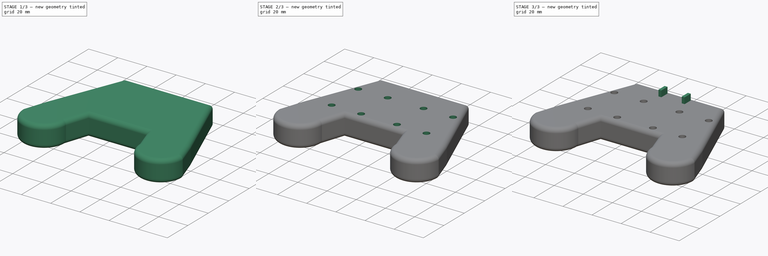
[diagram: build sequence overview — one tinted view per stage of 3, left to right]
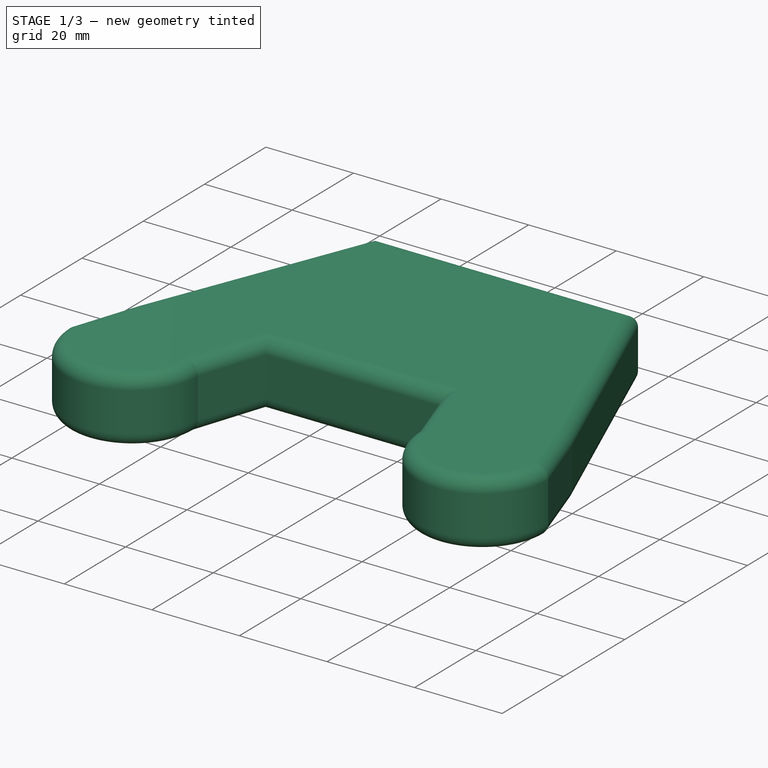
[diagram: stage 1 of 3 — iso view after this stage's code; geometry added in this stage tinted green]
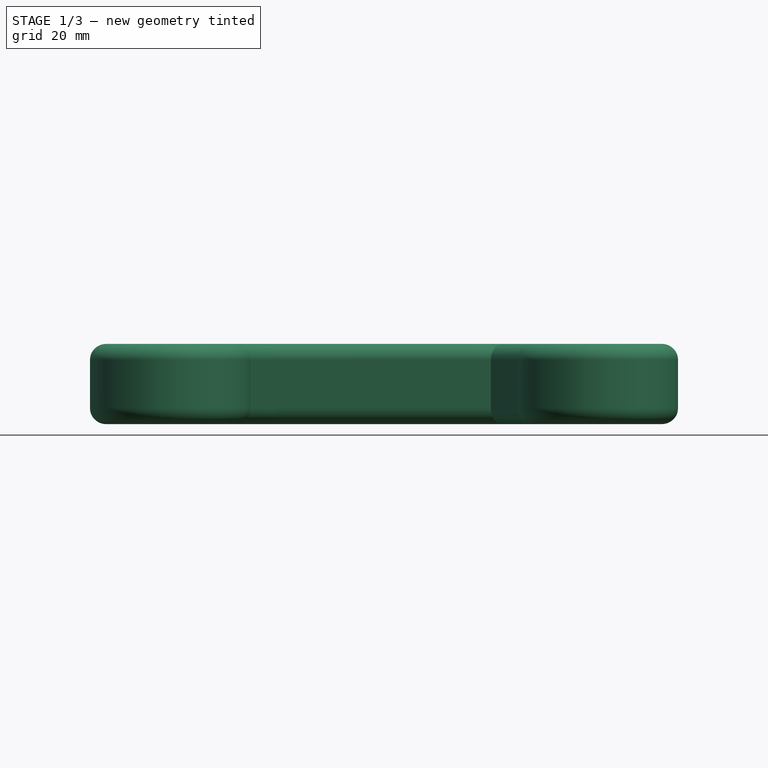
[diagram: stage 1 of 3 — front view after this stage's code; geometry added in this stage tinted green]
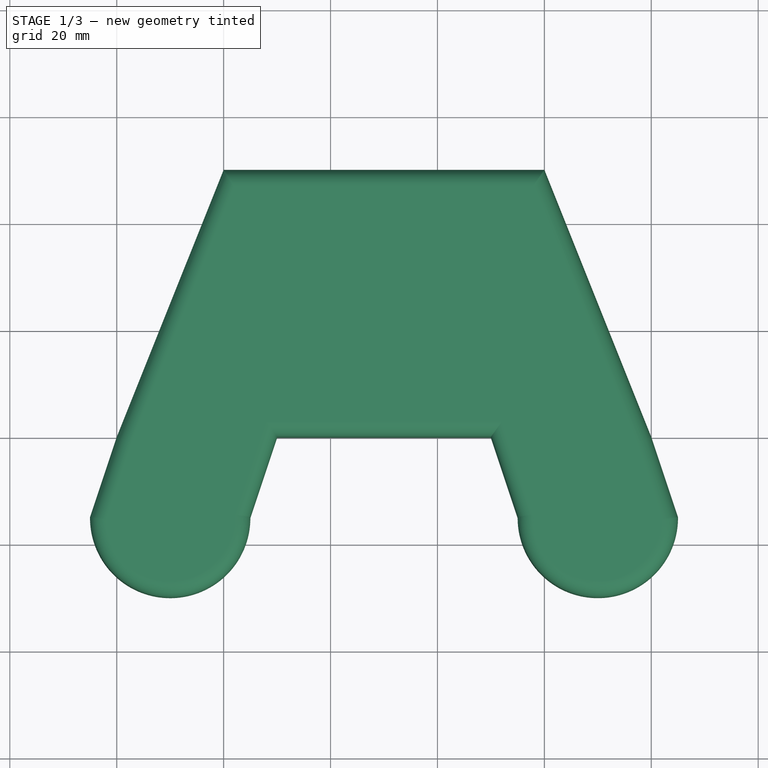
[diagram: stage 1 of 3 — top view after this stage's code; geometry added in this stage tinted green]
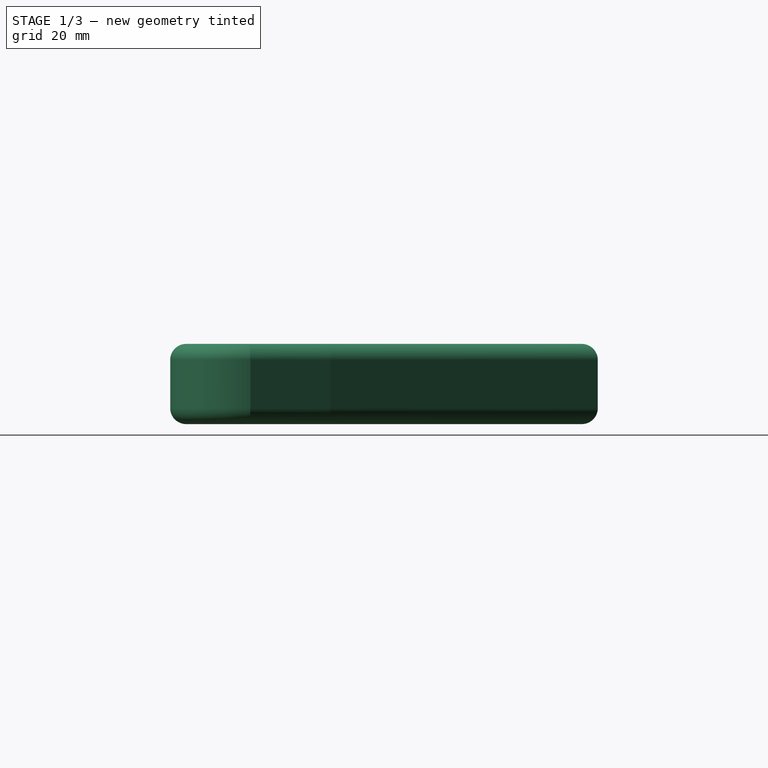
[diagram: stage 1 of 3 — right view after this stage's code; geometry added in this stage tinted green]
FCSTD DOCUMENT  (FreeCAD 0.20R29603 (Git))
Label: remote-controller
License: All rights reserved
LicenseURL: http://en.wikipedia.org/wiki/All_rights_reserved
objects: Sketcher::SketchObject×4, PartDesign::Pad×2, PartDesign::Pocket×2, PartDesign::Fillet×1, PartDesign::Body×1, App::Part×1
note: 15 computed .brp shape members not serialized (recipe doc carries the construction recipe); baked Part::Feature solids carry a one-line shape summary decoded from their .brp

FEATURE [Sketcher::SketchObject] Sketch
  FullyConstrained = true
  MapMode = 5
  Support = -> [XY_Plane001]
  sketch-geometry (10):
    g0: LineSegment StartX=80 StartY=50 StartZ=0 EndX=20 EndY=50 EndZ=0
    g1: LineSegment StartX=0 StartY=0 StartZ=0 EndX=20 EndY=50 EndZ=0
    g2: LineSegment StartX=80 StartY=50 StartZ=0 EndX=100 EndY=0 EndZ=0
    g3: LineSegment StartX=0 StartY=0 StartZ=0 EndX=-5 EndY=-15 EndZ=0
    g4: LineSegment StartX=100 StartY=0 StartZ=0 EndX=105 EndY=-15 EndZ=0
    g5: ArcOfCircle CenterX=10 CenterY=-15 CenterZ=0 NormalX=0 NormalY=0 NormalZ=1 AngleXU=0 Radius=15 StartAngle=3.14159 EndAngle=6.28319
    g6: ArcOfCircle CenterX=90 CenterY=-15 CenterZ=0 NormalX=0 NormalY=0 NormalZ=1 AngleXU=0 Radius=15 StartAngle=3.14159 EndAngle=6.28319
    g7: LineSegment StartX=25 StartY=-15 StartZ=0 EndX=30 EndY=0 EndZ=0
    g8: LineSegment StartX=70 StartY=0 StartZ=0 EndX=75 EndY=-15 EndZ=0
    g9: LineSegment StartX=30 StartY=0 StartZ=0 EndX=70 EndY=0 EndZ=0
  constraints (31):
    c: Horizontal(g0)
    c: PointOnObject(g4,g-1)
    c: Coincident(g0,g1)
    c: Coincident(g0,g2)
    c: Coincident(g5,g3)
    c: Coincident(g6,g4)
    c: Equal(g6,g5)
    c: DistanceY(g5,g1) = 15
    c: DistanceY(g6,g-1) = 15
    c: DistanceX(g3,g5) = 30
    c: DistanceX(g6,g4) = 30
    c: Coincident(g4,g2)
    c: Coincident(g1,g3)
    c: Coincident(g-1,g1)
    c: DistanceX(g0,g0) = 60
    c: DistanceX(g1,g0) = 20
    c: DistanceX(g1,g2) = 100
    c: DistanceX(g3,g1) = 5
    c: DistanceX(g1,g4) = 105
    c: DistanceY(g1,g0) = 50
    c: DistanceY(g4,g1) = 15
    c: DistanceY(g3,g1) = 15
    c: DistanceY(g6,g-1) = 15
    c: Coincident(g7,g5)
    c: PointOnObject(g7,g-1)
    c: PointOnObject(g8,g-1)
    c: Coincident(g8,g6)
    c: Coincident(g9,g7)
    c: Coincident(g9,g8)
    c: DistanceX(g1,g7) = 30
    c: DistanceX(g8,g2) = 30
FEATURE [PartDesign::Pad] Pad
  Direction = (0,0,1)
  Length = 15
  Length2 = 10
  Profile = -> Sketch
  ReferenceAxis = -> Sketch [N_Axis]
  Type = 0
FEATURE [PartDesign::Fillet] Fillet
  Base = -> Pad [Edge19,Edge16,Edge18,Edge15,Edge12,Edge13,Edge21,Edge22,Edge25,Edge24,Edge28,Edge30,Edge4,Edge7,Edge10,Edge27,Edge29,Edge3,Edge6,Edge9]
  BaseFeature = -> Pad
  Radius = 3
  SupportTransform = false
  UseAllEdges = false
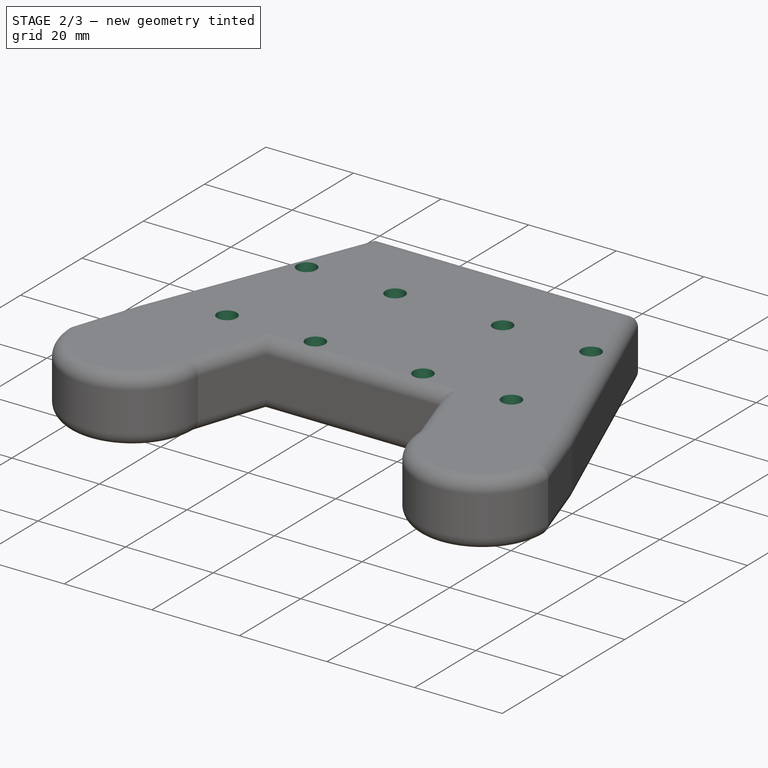
[diagram: stage 2 of 3 — iso view after this stage's code; geometry added in this stage tinted green]
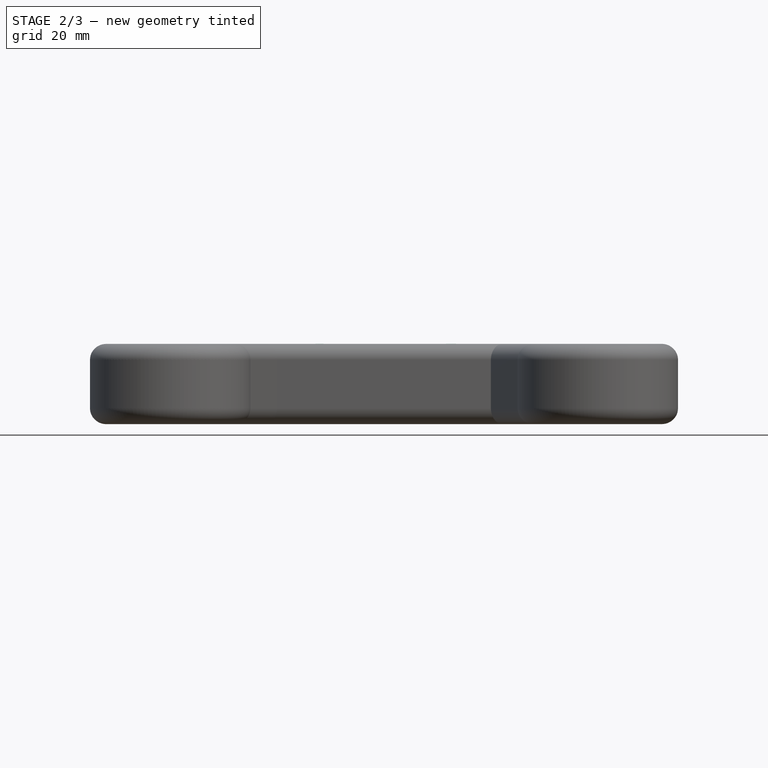
[diagram: stage 2 of 3 — front view after this stage's code; geometry added in this stage tinted green]
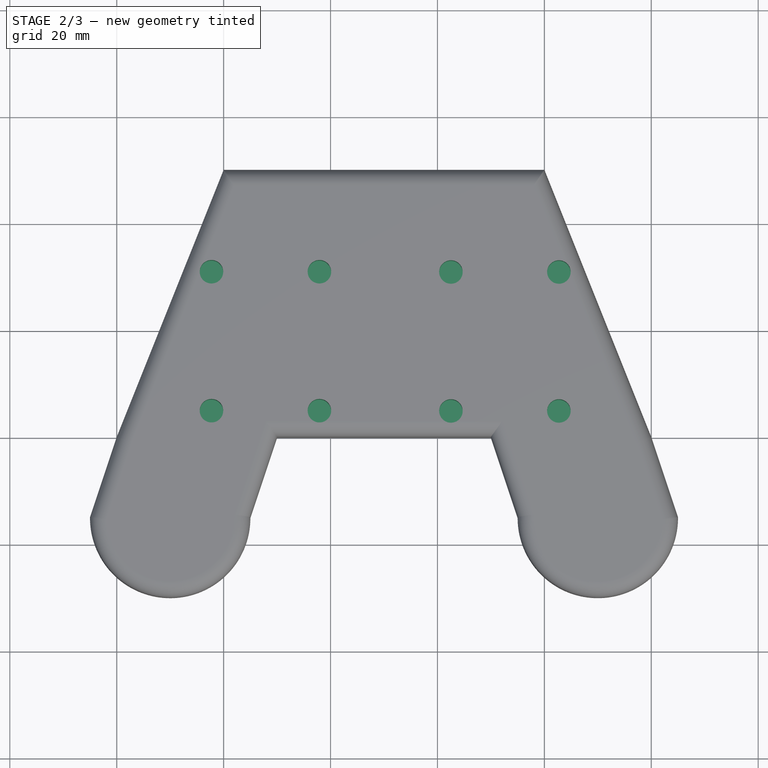
[diagram: stage 2 of 3 — top view after this stage's code; geometry added in this stage tinted green]
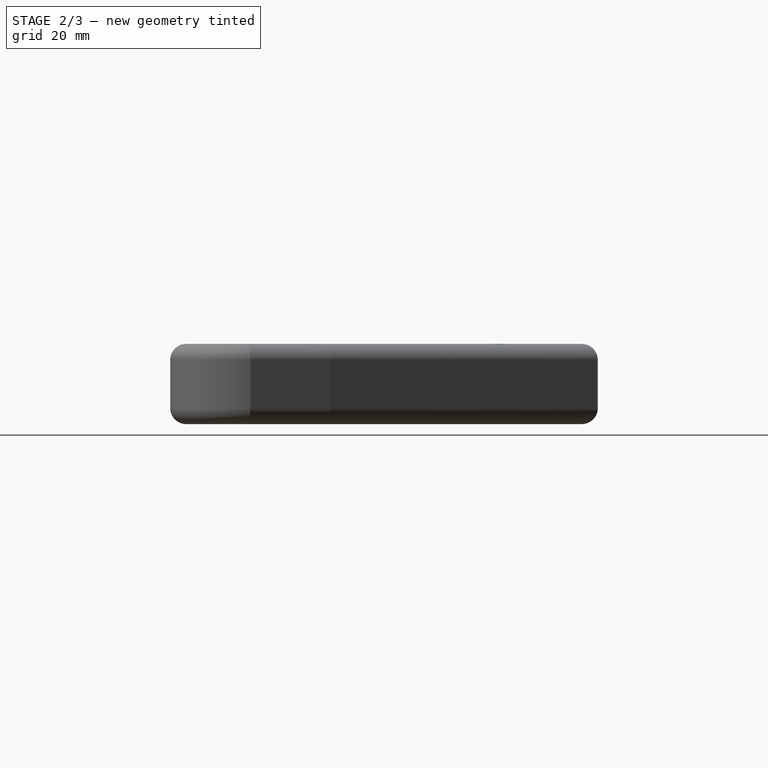
[diagram: stage 2 of 3 — right view after this stage's code; geometry added in this stage tinted green]
FEATURE [Sketcher::SketchObject] Sketch001
  FullyConstrained = true
  MapMode = 5
  Placement = pos=(0,0,15) rot=(0,0,1;0rad)
  Support = -> [Fillet]
  sketch-geometry (8):
    g0: Circle CenterX=17.72 CenterY=30.88 CenterZ=0 NormalX=0 NormalY=0 NormalZ=1 AngleXU=0 Radius=2.2
    g1: Circle CenterX=37.92 CenterY=30.88 CenterZ=0 NormalX=0 NormalY=0 NormalZ=1 AngleXU=0 Radius=2.2
    g2: Circle CenterX=17.72 CenterY=4.88 CenterZ=0 NormalX=0 NormalY=0 NormalZ=1 AngleXU=0 Radius=2.2
    g3: Circle CenterX=37.92 CenterY=4.88 CenterZ=0 NormalX=0 NormalY=0 NormalZ=1 AngleXU=0 Radius=2.2
    g4: Circle CenterX=62.52 CenterY=30.83 CenterZ=0 NormalX=0 NormalY=0 NormalZ=1 AngleXU=0 Radius=2.2
    g5: Circle CenterX=82.72 CenterY=30.83 CenterZ=0 NormalX=0 NormalY=0 NormalZ=1 AngleXU=0 Radius=2.2
    g6: Circle CenterX=62.52 CenterY=4.83 CenterZ=0 NormalX=0 NormalY=0 NormalZ=1 AngleXU=0 Radius=2.2
    g7: Circle CenterX=82.72 CenterY=4.83 CenterZ=0 NormalX=0 NormalY=0 NormalZ=1 AngleXU=0 Radius=2.2
  constraints (24):
    c: DistanceY(g2,g0) = 26
    c: DistanceY(g3,g1) = 26
    c: Equal(g0,g1)
    c: Equal(g2,g0)
    c: Equal(g3,g0)
    c: Radius(g0) = 2.2
    c: DistanceX(g2,g3) = 20.2
    c: Horizontal(g0,g1)
    c: Vertical(g0,g2)
    c: Equal(g4,g0)
    c: Equal(g5,g0)
    c: Equal(g6,g0)
    c: Equal(g7,g0)
    c: DistanceX(g4,g5) = 20.2
    c: DistanceX(g6,g7) = 20.2
    c: Horizontal(g6,g7)
    c: Horizontal(g4,g5)
    c: Vertical(g4,g6)
    c: DistanceY(g6,g4) = 26
    c: DistanceX(g-1,g0) = 17.72
    c: DistanceX(g-1,g4) = 62.52
    c: DistanceY(g-1,g2) = 4.88
    c: DistanceY(g-1,g6) = 4.83
    c: DistanceX(g0,g1) = 20.2
FEATURE [PartDesign::Pocket] Pocket
  BaseFeature = -> Fillet
  Direction = (0,0,-1)
  Length = 7
  Length2 = 5
  Profile = -> Sketch001
  ReferenceAxis = -> Sketch001 [N_Axis]
  Type = 0
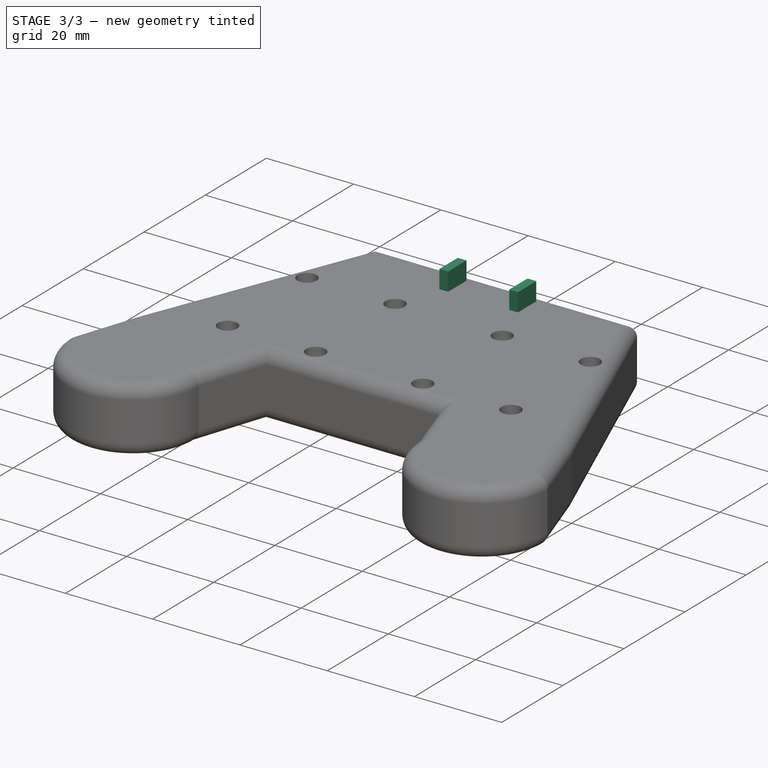
[diagram: stage 3 of 3 — iso view after this stage's code; geometry added in this stage tinted green]
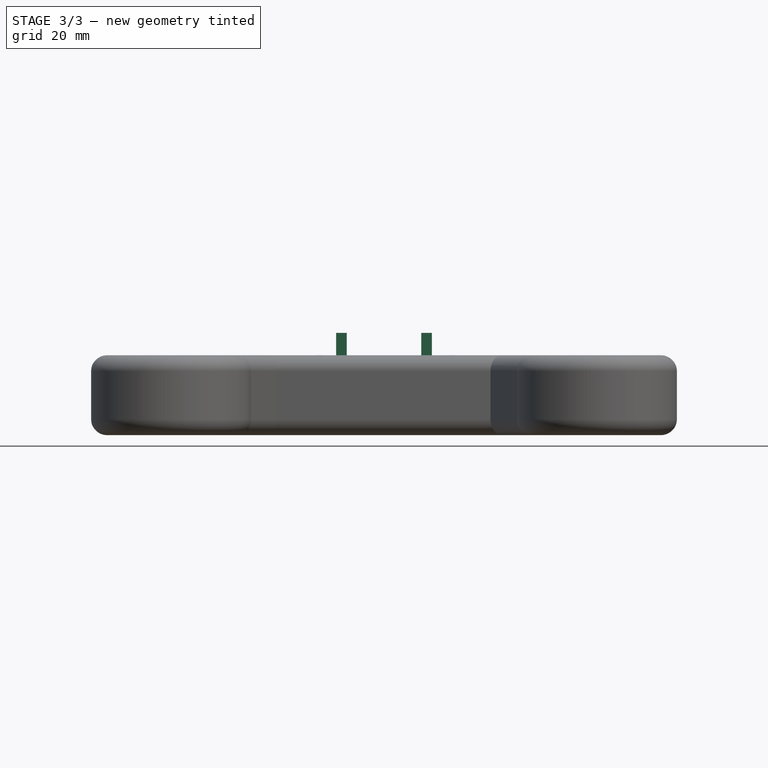
[diagram: stage 3 of 3 — front view after this stage's code; geometry added in this stage tinted green]
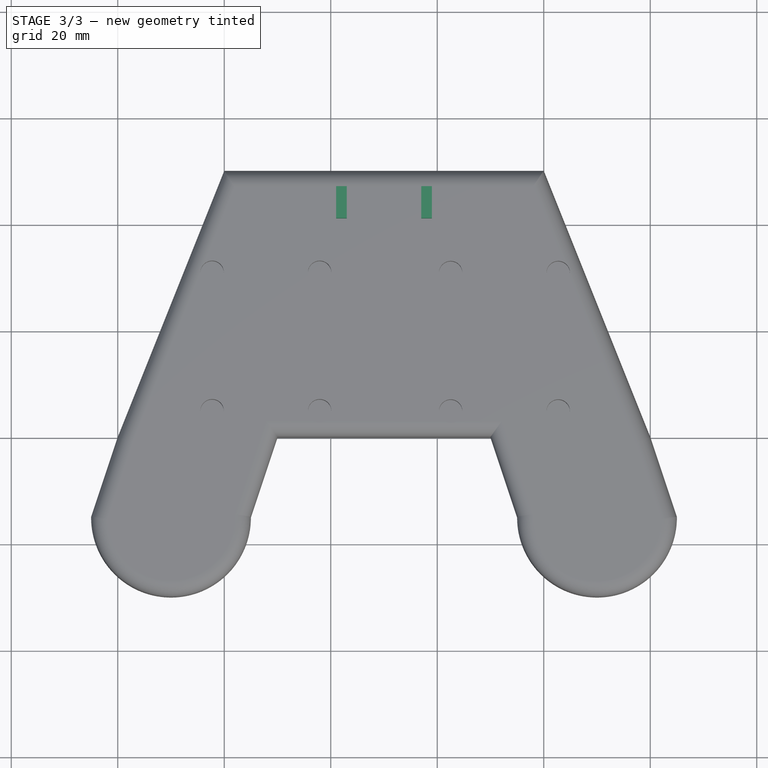
[diagram: stage 3 of 3 — top view after this stage's code; geometry added in this stage tinted green]
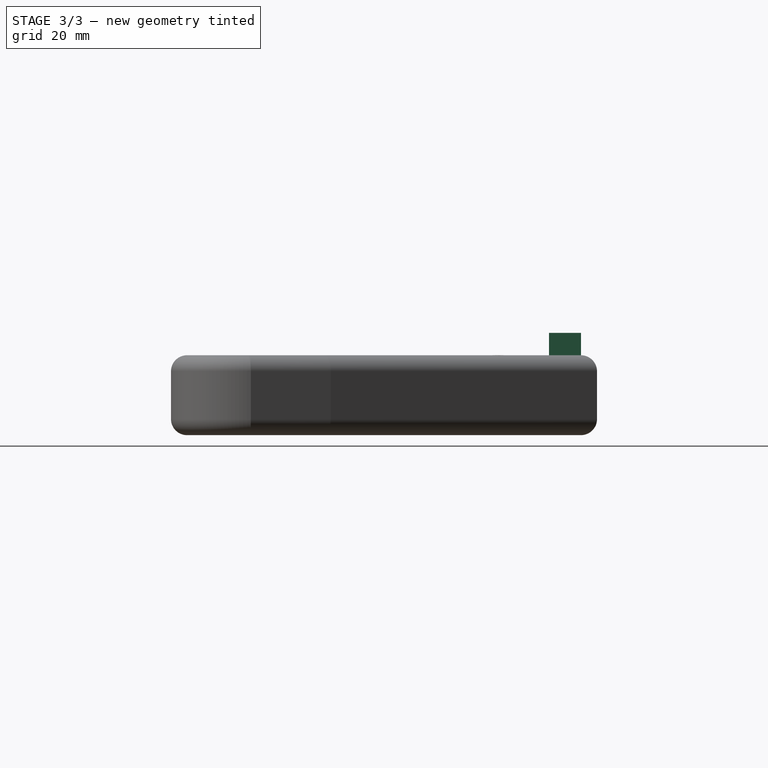
[diagram: stage 3 of 3 — right view after this stage's code; geometry added in this stage tinted green]
FEATURE [Sketcher::SketchObject] Sketch002
  FullyConstrained = true
  MapMode = 5
  Placement = pos=(0,0,15) rot=(0,0,1;0rad)
  Support = -> [Pocket]
  sketch-geometry (8):
    g0: LineSegment StartX=41 StartY=47 StartZ=0 EndX=43 EndY=47 EndZ=0
    g1: LineSegment StartX=43 StartY=47 StartZ=0 EndX=43 EndY=41 EndZ=0
    g2: LineSegment StartX=43 StartY=41 StartZ=0 EndX=41 EndY=41 EndZ=0
    g3: LineSegment StartX=41 StartY=41 StartZ=0 EndX=41 EndY=47 EndZ=0
    g4: LineSegment StartX=59 StartY=47 StartZ=0 EndX=57 EndY=47 EndZ=0
    g5: LineSegment StartX=57 StartY=47 StartZ=0 EndX=57 EndY=41 EndZ=0
    g6: LineSegment StartX=57 StartY=41 StartZ=0 EndX=59 EndY=41 EndZ=0
    g7: LineSegment StartX=59 StartY=41 StartZ=0 EndX=59 EndY=47 EndZ=0
  constraints (24):
    c: Coincident(g0,g1)
    c: Coincident(g1,g2)
    c: Coincident(g2,g3)
    c: Coincident(g3,g0)
    c: Horizontal(g0)
    c: Horizontal(g2)
    c: Vertical(g1)
    c: Vertical(g3)
    c: Coincident(g4,g5)
    c: Coincident(g5,g6)
    c: Coincident(g6,g7)
    c: Coincident(g7,g4)
    c: Horizontal(g4)
    c: Horizontal(g6)
    c: Vertical(g5)
    c: Vertical(g7)
    c: Equal(g7,g1)
    c: DistanceY(g1,g1) = 6
    c: DistanceY(g-1,g2) = 41
    c: DistanceY(g-1,g6) = 41
    c: DistanceX(g-1,g0) = 43
    c: DistanceX(g0,g0) = 2
    c: Equal(g4,g0)
    c: DistanceX(g0,g4) = 14
FEATURE [PartDesign::Pad] Pad001  label="intena"
  BaseFeature = -> Pocket
  Direction = (0,0,1)
  Length = 4.2
  Length2 = 10
  Profile = -> Sketch002
  ReferenceAxis = -> Sketch002 [N_Axis]
  Type = 0
FEATURE [Sketcher::SketchObject] Sketch003
  FullyConstrained = true
  MapMode = 5
  Placement = pos=(41,0,0) rot=(0.57735,-0.57735,-0.57735;2.0944rad)
  Support = -> [Pad001]
  sketch-geometry (4):
    g0: LineSegment StartX=42 StartY=18.2 StartZ=0 EndX=58 EndY=18.2 EndZ=0
    g1: LineSegment StartX=58 StartY=18.2 StartZ=0 EndX=58 EndY=16.4 EndZ=0
    g2: LineSegment StartX=58 StartY=16.4 StartZ=0 EndX=42 EndY=16.4 EndZ=0
    g3: LineSegment StartX=42 StartY=16.4 StartZ=0 EndX=42 EndY=18.2 EndZ=0
  constraints (12):
    c: Coincident(g0,g1)
    c: Coincident(g1,g2)
    c: Coincident(g2,g3)
    c: Coincident(g3,g0)
    c: Horizontal(g0)
    c: Horizontal(g2)
    c: Vertical(g1)
    c: Vertical(g3)
    c: DistanceX(g-1,g2) = 42
    c: DistanceX(g0,g0) = 16
    c: DistanceY(g3,g3) = 1.8
    c: DistanceY(g-1,g2) = 16.4
FEATURE [PartDesign::Pocket] Pocket001
  BaseFeature = -> Pad001
  Direction = (1,0,0)
  Length = 15
  Length2 = 5
  Profile = -> Sketch003
  ReferenceAxis = -> Sketch003 [N_Axis]
  Type = 0
FEATURE [PartDesign::Body] Body
  Group = -> [Sketch,Pad,Fillet,Sketch001,Pocket,Sketch002,Pad001,Sketch003,Pocket001]
  Origin = -> Origin001
  Tip = -> Pocket001
FEATURE [App::Part] Part  label="controller"
  Group = -> [Body]
  Origin = -> Origin
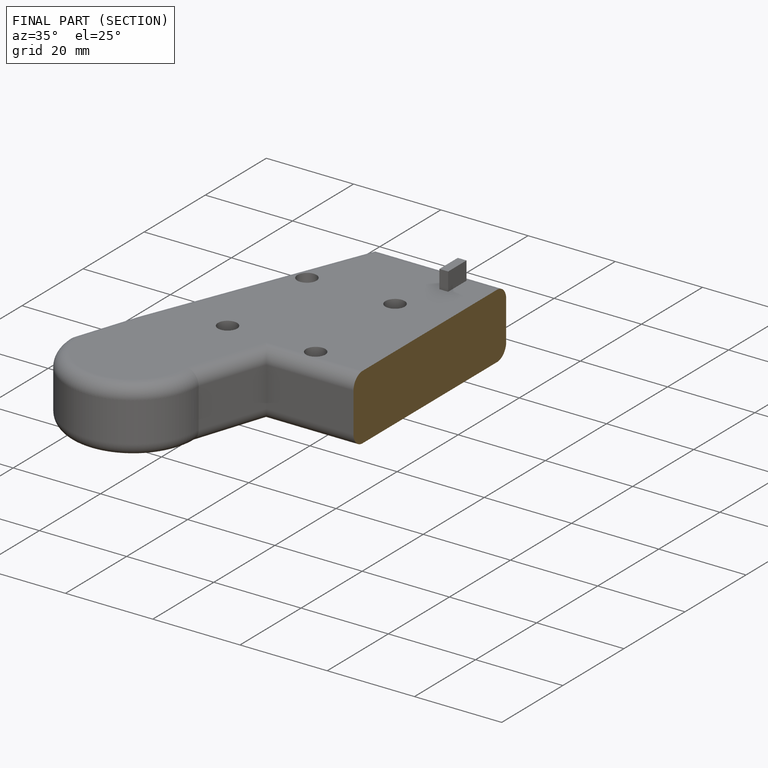
[diagram: finished part — half-section view (interior)]
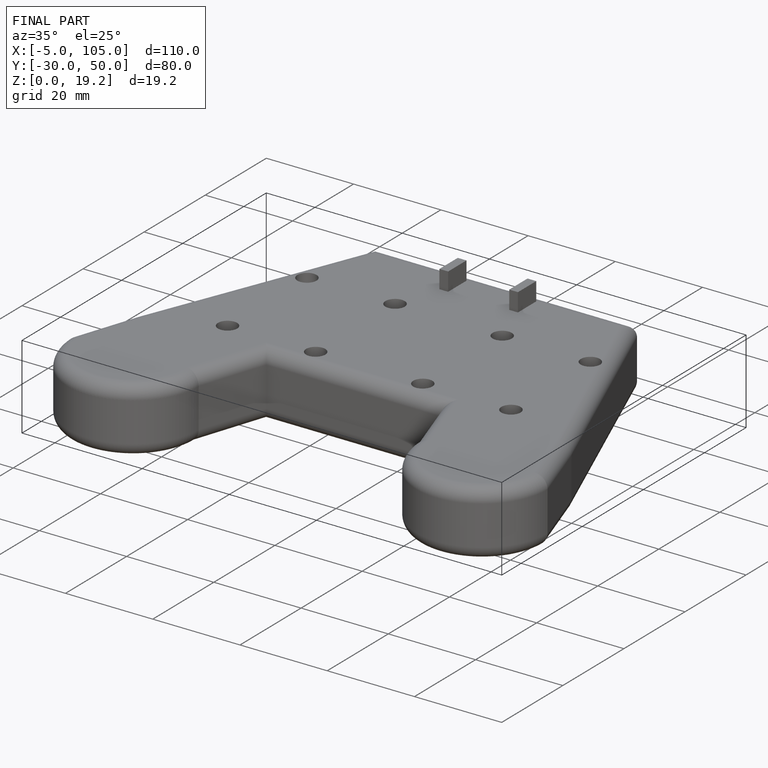
[diagram: finished part — iso view with bounding-box wireframe]
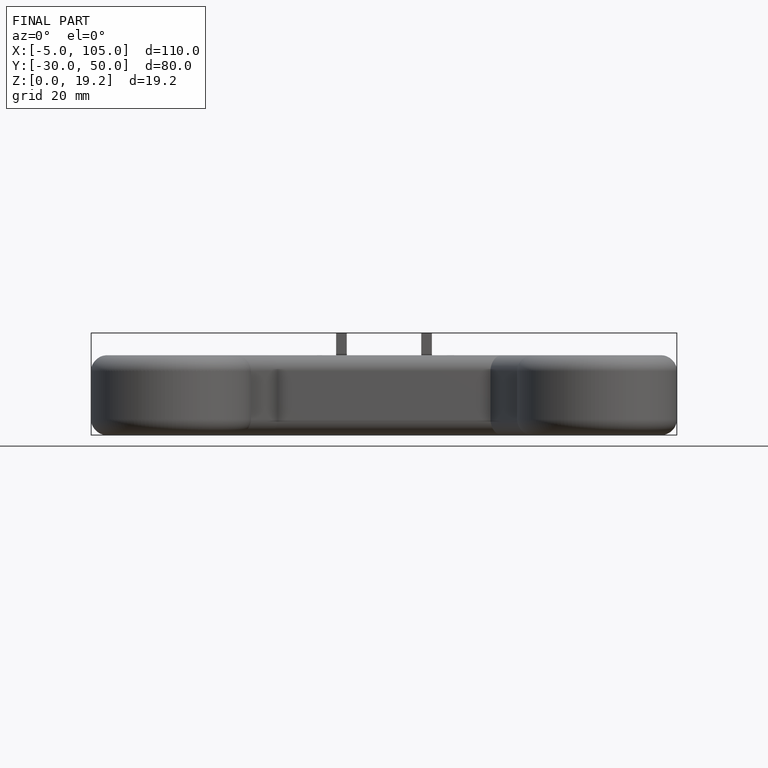
[diagram: finished part — front view with bounding-box wireframe]
